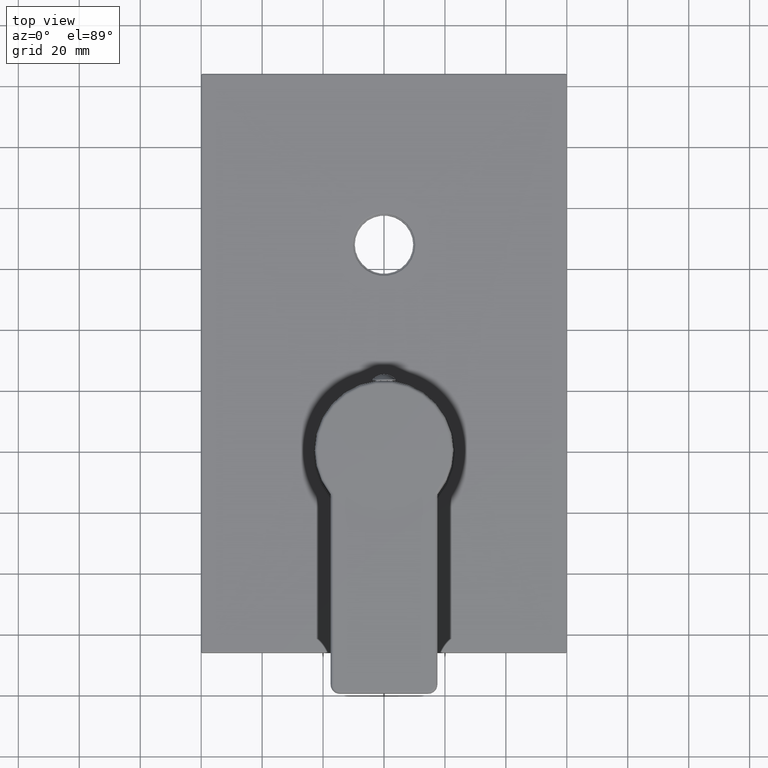
[diagram: clean part render]
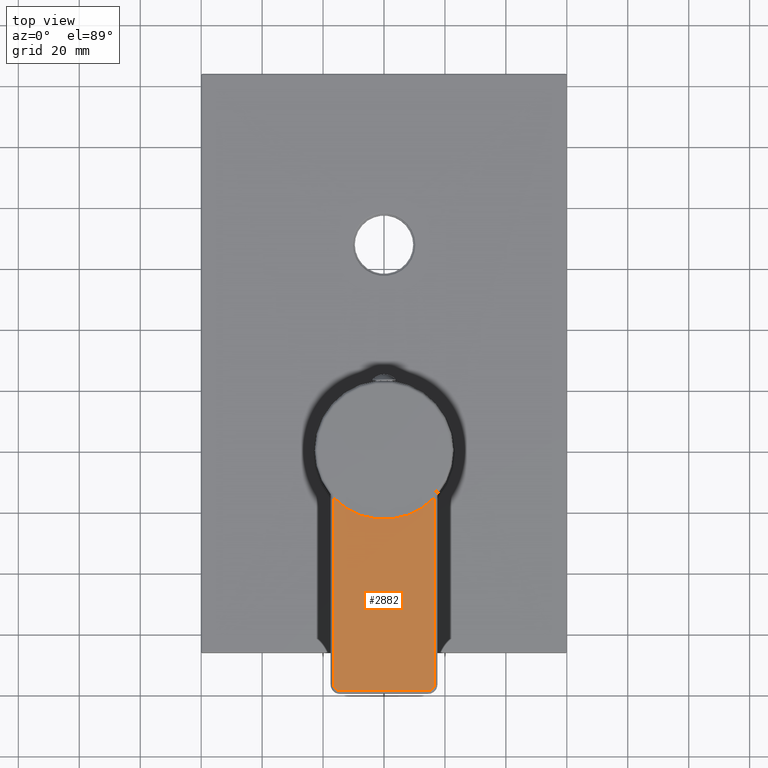
[diagram: same view with one face highlighted and labeled with its STEP entity id]
A machine part, top view. The second image highlights one B-rep face of the part: STEP entity #2882.
In plain terms, the highlighted planar face has unit normal (0, 0, 1).
Its self-contained STEP definition (entity closure, byte-faithful):
#405=DIRECTION('',(0.E0,1.E0,0.E0));
#406=VECTOR('',#405,6.133754489232E1);
#407=CARTESIAN_POINT('',(-1.65E1,-7.7E1,2.95E1));
#408=LINE('',#407,#406);
#409=CARTESIAN_POINT('',(0.E0,0.E0,2.95E1));
#410=DIRECTION('',(0.E0,0.E0,1.E0));
#411=DIRECTION('',(-7.252747252747E-1,-6.884595651726E-1,0.E0));
#412=AXIS2_PLACEMENT_3D('',#409,#410,#411);
#414=DIRECTION('',(0.E0,-1.E0,0.E0));
#415=VECTOR('',#414,6.133754489232E1);
#416=CARTESIAN_POINT('',(1.65E1,-1.566245510768E1,2.95E1));
#417=LINE('',#416,#415);
#418=CARTESIAN_POINT('',(1.45E1,-7.7E1,2.95E1));
#419=DIRECTION('',(0.E0,0.E0,-1.E0));
#420=DIRECTION('',(1.E0,0.E0,0.E0));
#421=AXIS2_PLACEMENT_3D('',#418,#419,#420);
#423=DIRECTION('',(-1.E0,0.E0,0.E0));
#424=VECTOR('',#423,2.9E1);
#425=CARTESIAN_POINT('',(1.45E1,-7.9E1,2.95E1));
#426=LINE('',#425,#424);
#427=CARTESIAN_POINT('',(-1.45E1,-7.7E1,2.95E1));
#428=DIRECTION('',(0.E0,0.E0,-1.E0));
#429=DIRECTION('',(0.E0,-1.E0,0.E0));
#430=AXIS2_PLACEMENT_3D('',#427,#428,#429);
#2119=CARTESIAN_POINT('',(-1.65E1,-7.7E1,2.95E1));
#2120=CARTESIAN_POINT('',(-1.65E1,-1.566245510768E1,2.95E1));
#2121=VERTEX_POINT('',#2119);
#2122=VERTEX_POINT('',#2120);
#2125=CARTESIAN_POINT('',(-1.45E1,-7.9E1,2.95E1));
#2126=VERTEX_POINT('',#2125);
#2127=CARTESIAN_POINT('',(1.45E1,-7.9E1,2.95E1));
#2128=VERTEX_POINT('',#2127);
#2129=CARTESIAN_POINT('',(1.65E1,-7.7E1,2.95E1));
#2130=VERTEX_POINT('',#2129);
#2133=CARTESIAN_POINT('',(1.65E1,-1.566245510768E1,2.95E1));
#2134=VERTEX_POINT('',#2133);
#2867=CARTESIAN_POINT('',(1.75E1,-8.E1,2.95E1));
#2868=DIRECTION('',(0.E0,0.E0,1.E0));
#2869=DIRECTION('',(-1.E0,0.E0,0.E0));
#2870=AXIS2_PLACEMENT_3D('',#2867,#2868,#2869);
#2871=PLANE('',#2870);
#2872=ORIENTED_EDGE('',*,*,#2851,.T.);
#2873=ORIENTED_EDGE('',*,*,#2727,.T.);
#2874=ORIENTED_EDGE('',*,*,#2299,.T.);
#2876=ORIENTED_EDGE('',*,*,#2875,.T.);
#2878=ORIENTED_EDGE('',*,*,#2877,.T.);
#2879=ORIENTED_EDGE('',*,*,#2832,.T.);
#2880=EDGE_LOOP('',(#2872,#2873,#2874,#2876,#2878,#2879));
#2881=FACE_OUTER_BOUND('',#2880,.F.);
#2882=ADVANCED_FACE('',(#2881),#2871,.T.);
#413=CIRCLE('',#412,2.275E1);
#422=CIRCLE('',#421,2.E0);
#431=CIRCLE('',#430,2.E0);
#2299=EDGE_CURVE('',#2134,#2130,#417,.T.);
#2727=EDGE_CURVE('',#2122,#2134,#413,.T.);
#2832=EDGE_CURVE('',#2126,#2121,#431,.T.);
#2851=EDGE_CURVE('',#2121,#2122,#408,.T.);
#2875=EDGE_CURVE('',#2130,#2128,#422,.T.);
#2877=EDGE_CURVE('',#2128,#2126,#426,.T.);